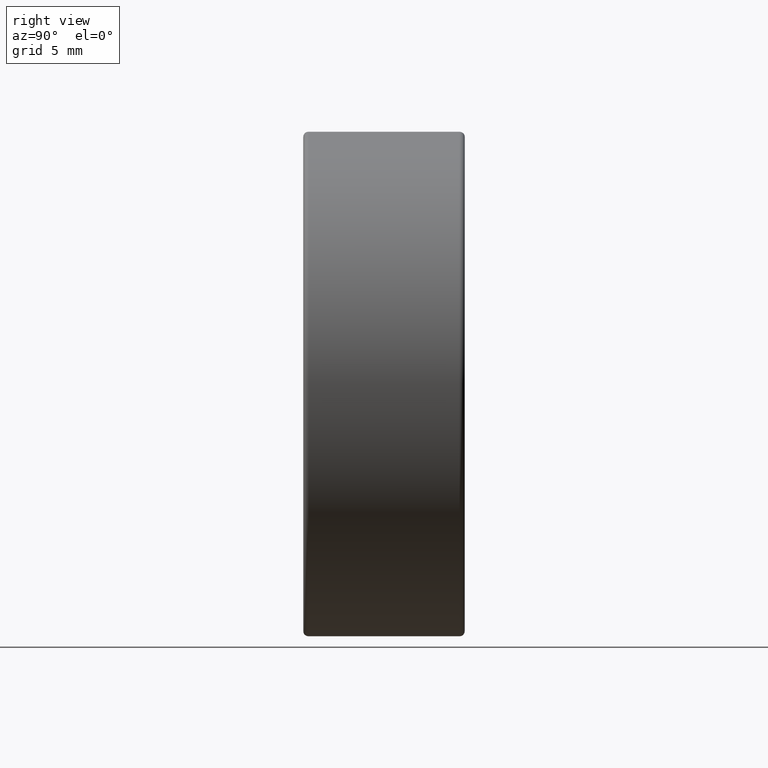
[diagram: clean part render]
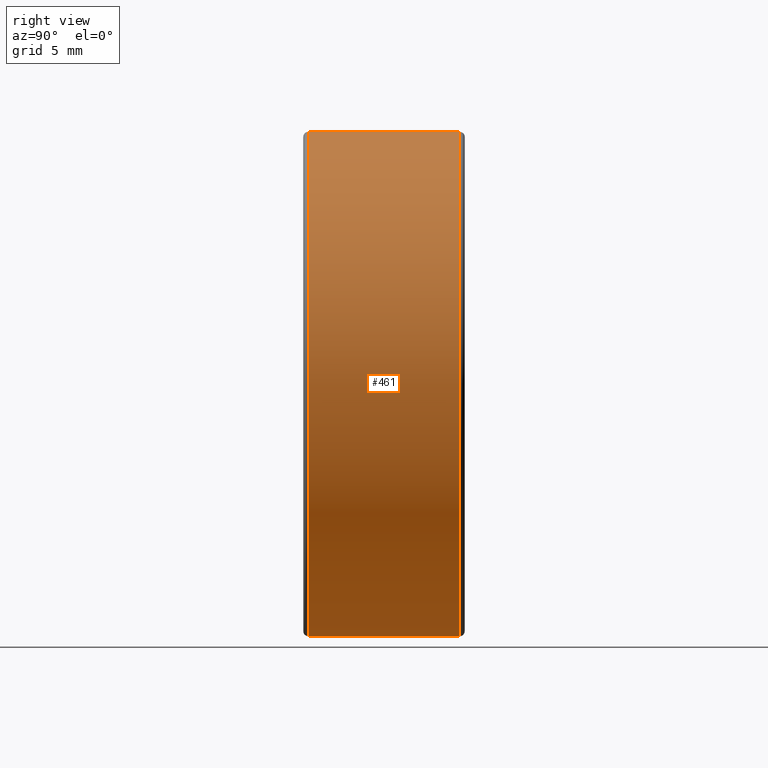
[diagram: same view with one face highlighted and labeled with its STEP entity id]
A machine part, right view. The second image highlights one B-rep face of the part: STEP entity #461.
In plain terms, the highlighted cylindrical surface (partial cylindrical patch) has radius 12.5 mm, axis along (-0, -1, -0).
Its self-contained STEP definition (entity closure, byte-faithful):
#14 = DIRECTION ( 'NONE',  ( 0.0000000000000000000, 0.0000000000000000000, 1.000000000000000000 ) ) ;
#24 = CARTESIAN_POINT ( 'NONE',  ( -4.682026255059964726, -5.344975976998274980, 25.00000000000000000 ) ) ;
#40 = CARTESIAN_POINT ( 'NONE',  ( -4.682026255059964726, -5.344975976998274980, 37.50000000000000711 ) ) ;
#48 = LINE ( 'NONE', #235, #281 ) ;
#71 = EDGE_LOOP ( 'NONE', ( #600, #78, #275, #97 ) ) ;
#78 = ORIENTED_EDGE ( 'NONE', *, *, #345, .T. ) ;
#80 = CYLINDRICAL_SURFACE ( 'NONE', #129, 12.50000000000000000 ) ;
#88 = CARTESIAN_POINT ( 'NONE',  ( -4.682026255059962949, 2.155024023001725020, 37.50000000000000711 ) ) ;
#97 = ORIENTED_EDGE ( 'NONE', *, *, #211, .F. ) ;
#99 = DIRECTION ( 'NONE',  ( 0.0000000000000000000, 0.0000000000000000000, -1.000000000000000000 ) ) ;
#129 = AXIS2_PLACEMENT_3D ( 'NONE', #516, #425, #99 ) ;
#141 = VERTEX_POINT ( 'NONE', #40 ) ;
#154 = DIRECTION ( 'NONE',  ( 0.0000000000000000000, 1.000000000000000000, 0.0000000000000000000 ) ) ;
#198 = VERTEX_POINT ( 'NONE', #88 ) ;
#211 = EDGE_CURVE ( 'NONE', #466, #310, #48, .T. ) ;
#218 = CIRCLE ( 'NONE', #337, 12.50000000000000355 ) ;
#230 = DIRECTION ( 'NONE',  ( -0.0000000000000000000, -1.000000000000000000, -0.0000000000000000000 ) ) ;
#235 = CARTESIAN_POINT ( 'NONE',  ( -4.682026255059964726, 2.405024023001725020, 12.50000000000000000 ) ) ;
#275 = ORIENTED_EDGE ( 'NONE', *, *, #473, .T. ) ;
#281 = VECTOR ( 'NONE', #430, 1000.000000000000000 ) ;
#298 = CIRCLE ( 'NONE', #379, 12.50000000000000355 ) ;
#299 = EDGE_CURVE ( 'NONE', #466, #198, #298, .T. ) ;
#310 = VERTEX_POINT ( 'NONE', #343 ) ;
#337 = AXIS2_PLACEMENT_3D ( 'NONE', #24, #154, #396 ) ;
#343 = CARTESIAN_POINT ( 'NONE',  ( -4.682026255059962949, -5.344975976998274980, 12.50000000000000000 ) ) ;
#345 = EDGE_CURVE ( 'NONE', #198, #141, #597, .T. ) ;
#379 = AXIS2_PLACEMENT_3D ( 'NONE', #387, #230, #14 ) ;
#387 = CARTESIAN_POINT ( 'NONE',  ( -4.682026255059964726, 2.155024023001725020, 25.00000000000000000 ) ) ;
#396 = DIRECTION ( 'NONE',  ( 0.0000000000000000000, 0.0000000000000000000, 1.000000000000000000 ) ) ;
#402 = CARTESIAN_POINT ( 'NONE',  ( -4.682026255059962949, 2.405024023001725020, 37.50000000000000711 ) ) ;
#413 = FACE_OUTER_BOUND ( 'NONE', #71, .T. ) ;
#425 = DIRECTION ( 'NONE',  ( -0.0000000000000000000, -1.000000000000000000, -0.0000000000000000000 ) ) ;
#430 = DIRECTION ( 'NONE',  ( -0.0000000000000000000, -1.000000000000000000, -0.0000000000000000000 ) ) ;
#437 = VECTOR ( 'NONE', #500, 1000.000000000000000 ) ;
#461 = ADVANCED_FACE ( 'NONE', ( #413 ), #80, .T. ) ;
#466 = VERTEX_POINT ( 'NONE', #529 ) ;
#473 = EDGE_CURVE ( 'NONE', #141, #310, #218, .T. ) ;
#500 = DIRECTION ( 'NONE',  ( -0.0000000000000000000, -1.000000000000000000, -0.0000000000000000000 ) ) ;
#516 = CARTESIAN_POINT ( 'NONE',  ( -4.682026255059964726, 2.405024023001725020, 25.00000000000000000 ) ) ;
#529 = CARTESIAN_POINT ( 'NONE',  ( -4.682026255059964726, 2.155024023001725020, 12.50000000000000000 ) ) ;
#597 = LINE ( 'NONE', #402, #437 ) ;
#600 = ORIENTED_EDGE ( 'NONE', *, *, #299, .T. ) ;